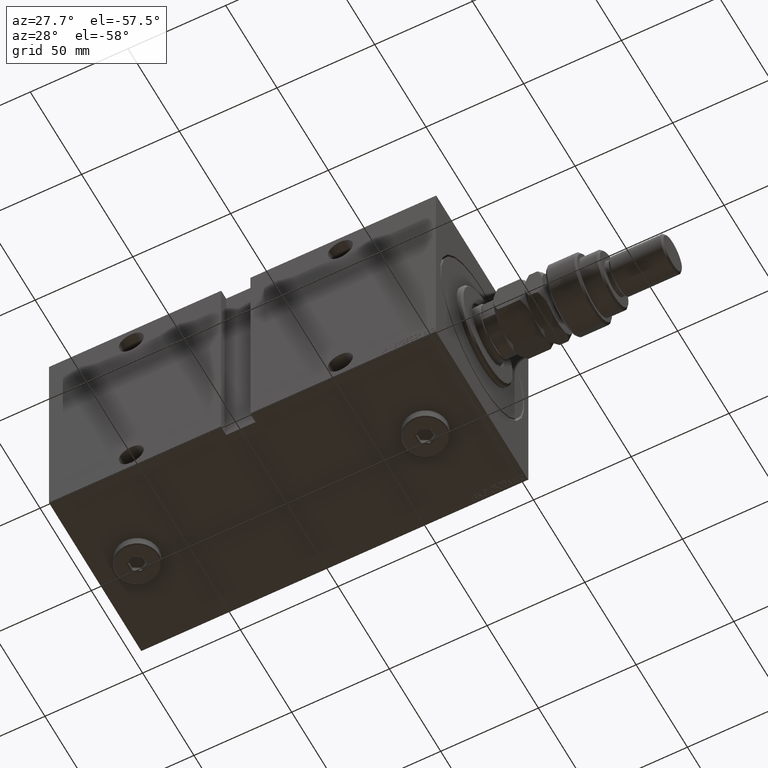
[diagram: clean part render]
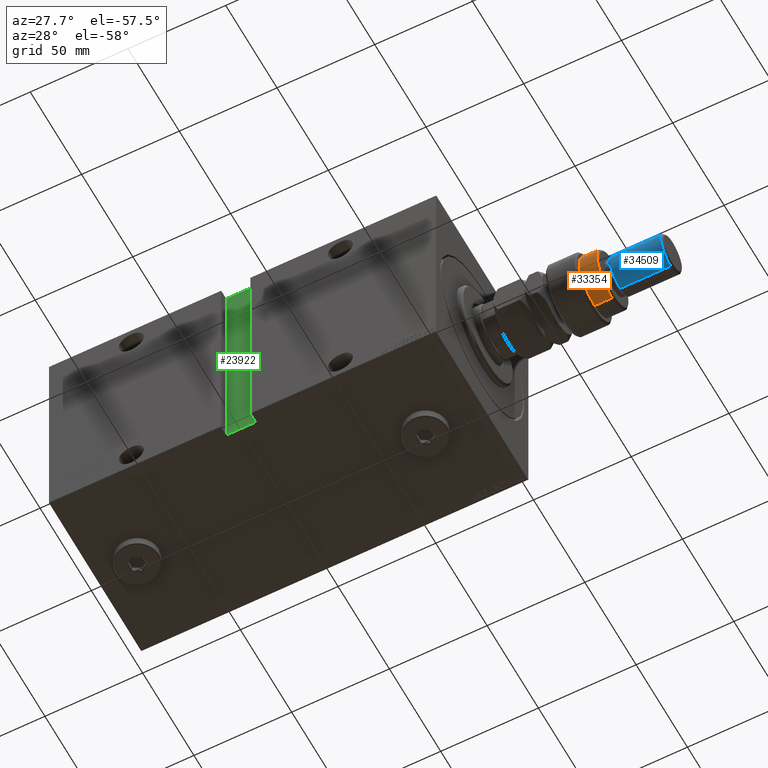
[diagram: same view with three faces highlighted in distinct colors, each labeled with its STEP entity id]
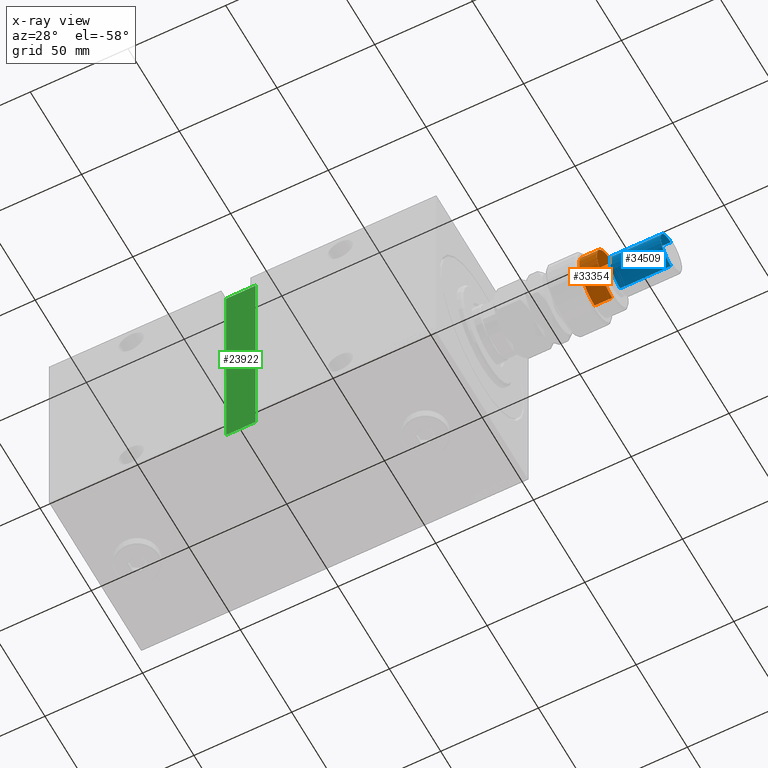
[diagram: x-ray of the same camera — body ghosted, the three highlighted faces saturated]
A machine part, auxiliary view with three faces highlighted in distinct colors.
The next image is the same camera in x-ray (body ghosted, the three faces saturated) — at least one of them is partly hidden behind the body in this view.
Their STEP definitions:

[orange] entity #33354 — the highlighted cylindrical surface (edge-blend (fillet) strip) has radius 15 mm, axis along (-1, -0, 0).
#1020 = DIRECTION ( 'NONE',  ( 0.000000000000000000, 0.000000000000000000, 1.000000000000000000 ) ) ;
#2888 = ORIENTED_EDGE ( 'NONE', *, *, #4635, .F. ) ;
#3119 = ORIENTED_EDGE ( 'NONE', *, *, #14833, .T. ) ;
#3184 = CARTESIAN_POINT ( 'NONE',  ( 15.00000000000000000, 1.836970198721029589E-15, 16.00000000000000000 ) ) ;
#4591 = ORIENTED_EDGE ( 'NONE', *, *, #11530, .F. ) ;
#4635 = EDGE_CURVE ( 'NONE', #10629, #32074, #30949, .T. ) ;
#4835 = FACE_OUTER_BOUND ( 'NONE', #34661, .T. ) ;
#5078 = DIRECTION ( 'NONE',  ( -1.000000000000000000, 0.000000000000000000, 0.000000000000000000 ) ) ;
#5118 = DIRECTION ( 'NONE',  ( -1.000000000000000000, 0.000000000000000000, 0.000000000000000000 ) ) ;
#7196 = CARTESIAN_POINT ( 'NONE',  ( 15.00000000000000000, 1.836970198721029589E-15, 24.99999999999997868 ) ) ;
#7291 = ORIENTED_EDGE ( 'NONE', *, *, #30716, .T. ) ;
#7782 = CARTESIAN_POINT ( 'NONE',  ( -15.00000000000000000, 0.000000000000000000, 17.50000000000000000 ) ) ;
#8232 = VERTEX_POINT ( 'NONE', #37148 ) ;
#8865 = DIRECTION ( 'NONE',  ( 0.000000000000000000, 0.000000000000000000, -1.000000000000000000 ) ) ;
#9097 = VECTOR ( 'NONE', #25297, 1000.000000000000000 ) ;
#9400 = CARTESIAN_POINT ( 'NONE',  ( 15.00000000000000000, 1.836970198721029589E-15, 26.00000000000000355 ) ) ;
#9602 = EDGE_CURVE ( 'NONE', #14028, #42194, #23780, .T. ) ;
#10629 = VERTEX_POINT ( 'NONE', #13901 ) ;
#11530 = EDGE_CURVE ( 'NONE', #14028, #26766, #38763, .T. ) ;
#12518 = DIRECTION ( 'NONE',  ( 0.000000000000000000, 0.000000000000000000, -1.000000000000000000 ) ) ;
#13001 = ORIENTED_EDGE ( 'NONE', *, *, #9602, .T. ) ;
#13901 = CARTESIAN_POINT ( 'NONE',  ( -12.99038105676658006, -7.500000000000000000, 17.50000000000000000 ) ) ;
#14028 = VERTEX_POINT ( 'NONE', #7196 ) ;
#14692 = VECTOR ( 'NONE', #23945, 1000.000000000000000 ) ;
#14833 = EDGE_CURVE ( 'NONE', #10629, #8232, #31351, .T. ) ;
#17937 = CIRCLE ( 'NONE', #44638, 15.00000000000000000 ) ;
#18362 = LINE ( 'NONE', #25526, #9097 ) ;
#20287 = AXIS2_PLACEMENT_3D ( 'NONE', #26124, #12518, #5118 ) ;
#22453 = CARTESIAN_POINT ( 'NONE',  ( 0.000000000000000000, 0.000000000000000000, 24.99999999999997868 ) ) ;
#23696 = CARTESIAN_POINT ( 'NONE',  ( 0.000000000000000000, 0.000000000000000000, 16.00000000000000000 ) ) ;
#23780 = CIRCLE ( 'NONE', #34460, 15.00000000000000000 ) ;
#23945 = DIRECTION ( 'NONE',  ( -0.000000000000000000, -0.000000000000000000, -1.000000000000000000 ) ) ;
#25297 = DIRECTION ( 'NONE',  ( -0.000000000000000000, -0.000000000000000000, -1.000000000000000000 ) ) ;
#25526 = CARTESIAN_POINT ( 'NONE',  ( -15.00000000000000000, 0.000000000000000000, 26.00000000000000355 ) ) ;
#26124 = CARTESIAN_POINT ( 'NONE',  ( 0.000000000000000000, 0.000000000000000000, 17.50000000000000000 ) ) ;
#26766 = VERTEX_POINT ( 'NONE', #3184 ) ;
#26797 = CARTESIAN_POINT ( 'NONE',  ( 0.000000000000000000, 0.000000000000000000, 26.00000000000000355 ) ) ;
#30373 = DIRECTION ( 'NONE',  ( 1.000000000000000000, 0.000000000000000000, 0.000000000000000000 ) ) ;
#30716 = EDGE_CURVE ( 'NONE', #8232, #26766, #17937, .T. ) ;
#30868 = CARTESIAN_POINT ( 'NONE',  ( -15.00000000000000000, 0.000000000000000000, 24.99999999999997868 ) ) ;
#30949 = CIRCLE ( 'NONE', #20287, 15.00000000000000000 ) ;
#31351 = LINE ( 'NONE', #45457, #46300 ) ;
#32074 = VERTEX_POINT ( 'NONE', #7782 ) ;
#32144 = CYLINDRICAL_SURFACE ( 'NONE', #47008, 15.00000000000000000 ) ;
#33354 = ADVANCED_FACE ( 'NONE', ( #4835 ), #32144, .T. ) ;
#34454 = DIRECTION ( 'NONE',  ( -0.000000000000000000, -0.000000000000000000, -1.000000000000000000 ) ) ;
#34460 = AXIS2_PLACEMENT_3D ( 'NONE', #22453, #8865, #37995 ) ;
#34661 = EDGE_LOOP ( 'NONE', ( #4591, #13001, #38022, #2888, #3119, #7291 ) ) ;
#37148 = CARTESIAN_POINT ( 'NONE',  ( -12.99038105676658006, -7.500000000000000000, 16.00000000000000000 ) ) ;
#37995 = DIRECTION ( 'NONE',  ( 1.000000000000000000, 0.000000000000000000, 0.000000000000000000 ) ) ;
#38022 = ORIENTED_EDGE ( 'NONE', *, *, #40174, .T. ) ;
#38763 = LINE ( 'NONE', #9400, #14692 ) ;
#40174 = EDGE_CURVE ( 'NONE', #42194, #32074, #18362, .T. ) ;
#42194 = VERTEX_POINT ( 'NONE', #30868 ) ;
#42577 = DIRECTION ( 'NONE',  ( -0.000000000000000000, -0.000000000000000000, -1.000000000000000000 ) ) ;
#44638 = AXIS2_PLACEMENT_3D ( 'NONE', #23696, #1020, #30373 ) ;
#45457 = CARTESIAN_POINT ( 'NONE',  ( -12.99038105676658006, -7.500000000000000000, 26.00000000000000355 ) ) ;
#46300 = VECTOR ( 'NONE', #42577, 1000.000000000000000 ) ;
#47008 = AXIS2_PLACEMENT_3D ( 'NONE', #26797, #34454, #5078 ) ;

[blue] entity #34509 — the highlighted cylindrical surface (edge-blend (fillet) strip) has radius 10 mm, axis along (-1, -0, 0).
#14 = VERTEX_POINT ( 'NONE', #40925 ) ;
#1405 = EDGE_CURVE ( 'NONE', #3698, #18489, #41539, .T. ) ;
#3698 = VERTEX_POINT ( 'NONE', #7215 ) ;
#4127 = DIRECTION ( 'NONE',  ( -0.000000000000000000, -0.000000000000000000, -1.000000000000000000 ) ) ;
#6176 = ORIENTED_EDGE ( 'NONE', *, *, #20791, .F. ) ;
#7215 = CARTESIAN_POINT ( 'NONE',  ( 10.00000000000000000, 1.224646799147353256E-15, 54.99999999999998579 ) ) ;
#7438 = CIRCLE ( 'NONE', #37971, 10.00000000000000000 ) ;
#10369 = FACE_OUTER_BOUND ( 'NONE', #29244, .T. ) ;
#10841 = CARTESIAN_POINT ( 'NONE',  ( 0.000000000000000000, 0.000000000000000000, 56.00000000000000711 ) ) ;
#11009 = AXIS2_PLACEMENT_3D ( 'NONE', #16959, #31053, #17193 ) ;
#11301 = CYLINDRICAL_SURFACE ( 'NONE', #45528, 10.00000000000000000 ) ;
#11871 = LINE ( 'NONE', #30952, #45758 ) ;
#15150 = DIRECTION ( 'NONE',  ( 1.000000000000000000, 0.000000000000000000, 0.000000000000000000 ) ) ;
#15585 = LINE ( 'NONE', #18929, #31164 ) ;
#16390 = ORIENTED_EDGE ( 'NONE', *, *, #1405, .T. ) ;
#16959 = CARTESIAN_POINT ( 'NONE',  ( 0.000000000000000000, 0.000000000000000000, 54.99999999999998579 ) ) ;
#17193 = DIRECTION ( 'NONE',  ( 1.000000000000000000, 0.000000000000000000, 0.000000000000000000 ) ) ;
#18489 = VERTEX_POINT ( 'NONE', #45933 ) ;
#18929 = CARTESIAN_POINT ( 'NONE',  ( 10.00000000000000000, 1.224646799147353256E-15, 56.00000000000000711 ) ) ;
#18944 = EDGE_CURVE ( 'NONE', #14, #30852, #7438, .T. ) ;
#20791 = EDGE_CURVE ( 'NONE', #3698, #30852, #15585, .T. ) ;
#23203 = CARTESIAN_POINT ( 'NONE',  ( 0.000000000000000000, 0.000000000000000000, 29.00000000000000711 ) ) ;
#23366 = ORIENTED_EDGE ( 'NONE', *, *, #18944, .T. ) ;
#24788 = EDGE_CURVE ( 'NONE', #18489, #14, #11871, .T. ) ;
#25171 = DIRECTION ( 'NONE',  ( -1.000000000000000000, 0.000000000000000000, 0.000000000000000000 ) ) ;
#25625 = DIRECTION ( 'NONE',  ( -0.000000000000000000, -0.000000000000000000, -1.000000000000000000 ) ) ;
#25896 = DIRECTION ( 'NONE',  ( -0.000000000000000000, -0.000000000000000000, 1.000000000000000000 ) ) ;
#29244 = EDGE_LOOP ( 'NONE', ( #6176, #16390, #35392, #23366 ) ) ;
#29998 = DIRECTION ( 'NONE',  ( -0.000000000000000000, -0.000000000000000000, -1.000000000000000000 ) ) ;
#30852 = VERTEX_POINT ( 'NONE', #37323 ) ;
#30952 = CARTESIAN_POINT ( 'NONE',  ( -10.00000000000000000, 0.000000000000000000, 56.00000000000000711 ) ) ;
#31053 = DIRECTION ( 'NONE',  ( 0.000000000000000000, 0.000000000000000000, -1.000000000000000000 ) ) ;
#31164 = VECTOR ( 'NONE', #4127, 1000.000000000000000 ) ;
#34509 = ADVANCED_FACE ( 'NONE', ( #10369 ), #11301, .T. ) ;
#35392 = ORIENTED_EDGE ( 'NONE', *, *, #24788, .T. ) ;
#37323 = CARTESIAN_POINT ( 'NONE',  ( 10.00000000000000000, 1.224646799147353256E-15, 29.00000000000000711 ) ) ;
#37971 = AXIS2_PLACEMENT_3D ( 'NONE', #23203, #25896, #15150 ) ;
#40925 = CARTESIAN_POINT ( 'NONE',  ( -10.00000000000000000, 0.000000000000000000, 29.00000000000000711 ) ) ;
#41539 = CIRCLE ( 'NONE', #11009, 10.00000000000000000 ) ;
#45528 = AXIS2_PLACEMENT_3D ( 'NONE', #10841, #25625, #25171 ) ;
#45758 = VECTOR ( 'NONE', #29998, 1000.000000000000000 ) ;
#45933 = CARTESIAN_POINT ( 'NONE',  ( -10.00000000000000000, 0.000000000000000000, 54.99999999999998579 ) ) ;

[green] entity #23922 — the highlighted planar face has unit normal (-0, 1, -0).
#2077 = VERTEX_POINT ( 'NONE', #13751 ) ;
#2503 = FACE_OUTER_BOUND ( 'NONE', #23078, .T. ) ;
#3081 = CARTESIAN_POINT ( 'NONE',  ( 109.9999999999999858, 40.00000000000003553, -57.50000000000000711 ) ) ;
#3142 = CARTESIAN_POINT ( 'NONE',  ( 94.99999999999997158, 40.00000000000002132, -57.50000000000001421 ) ) ;
#7513 = ORIENTED_EDGE ( 'NONE', *, *, #9121, .T. ) ;
#8418 = EDGE_CURVE ( 'NONE', #22415, #43007, #31613, .T. ) ;
#9121 = EDGE_CURVE ( 'NONE', #34366, #22415, #38353, .T. ) ;
#9445 = CARTESIAN_POINT ( 'NONE',  ( -2.512082536157262191E-30, 40.00000000000001421, 4.799630170686818023E-15 ) ) ;
#12545 = DIRECTION ( 'NONE',  ( -1.206764157201257045E-16, 1.206764157201257045E-16, -1.000000000000000000 ) ) ;
#13483 = DIRECTION ( 'NONE',  ( -1.000000000000000000, 0.000000000000000000, 0.000000000000000000 ) ) ;
#13751 = CARTESIAN_POINT ( 'NONE',  ( 94.99999999999997158, 40.00000000000000711, 57.50000000000001421 ) ) ;
#14057 = VECTOR ( 'NONE', #20333, 1000.000000000000000 ) ;
#14908 = ORIENTED_EDGE ( 'NONE', *, *, #27701, .T. ) ;
#16139 = ORIENTED_EDGE ( 'NONE', *, *, #33542, .T. ) ;
#16984 = CARTESIAN_POINT ( 'NONE',  ( 109.9999999999999858, 40.00000000000000711, 57.50000000000002132 ) ) ;
#19953 = CARTESIAN_POINT ( 'NONE',  ( 109.9999999999999858, 40.00000000000000711, 57.50000000000002132 ) ) ;
#20333 = DIRECTION ( 'NONE',  ( 1.000000000000000000, -0.000000000000000000, 4.625929269271481969E-16 ) ) ;
#20441 = VECTOR ( 'NONE', #13483, 1000.000000000000000 ) ;
#21765 = CARTESIAN_POINT ( 'NONE',  ( 94.99999999999997158, 40.00000000000002132, -57.50000000000001421 ) ) ;
#22415 = VERTEX_POINT ( 'NONE', #3081 ) ;
#23078 = EDGE_LOOP ( 'NONE', ( #16139, #14908, #7513, #36904 ) ) ;
#23922 = ADVANCED_FACE ( 'NONE', ( #2503 ), #31863, .F. ) ;
#25869 = AXIS2_PLACEMENT_3D ( 'NONE', #9445, #38813, #35928 ) ;
#26867 = CARTESIAN_POINT ( 'NONE',  ( 109.9999999999999716, 40.00000000000002132, -57.50000000000001421 ) ) ;
#27701 = EDGE_CURVE ( 'NONE', #2077, #34366, #45888, .T. ) ;
#30620 = VECTOR ( 'NONE', #12545, 1000.000000000000000 ) ;
#31613 = LINE ( 'NONE', #46185, #20441 ) ;
#31863 = PLANE ( 'NONE',  #25869 ) ;
#32027 = DIRECTION ( 'NONE',  ( 0.000000000000000000, -1.206764157201257045E-16, 1.000000000000000000 ) ) ;
#33542 = EDGE_CURVE ( 'NONE', #43007, #2077, #39210, .T. ) ;
#34366 = VERTEX_POINT ( 'NONE', #19953 ) ;
#35928 = DIRECTION ( 'NONE',  ( 0.000000000000000000, 1.206764157201257045E-16, -1.000000000000000000 ) ) ;
#36904 = ORIENTED_EDGE ( 'NONE', *, *, #8418, .T. ) ;
#38353 = LINE ( 'NONE', #26867, #30620 ) ;
#38813 = DIRECTION ( 'NONE',  ( 5.582405635905026143E-32, -1.000000000000000000, -1.206764157201257045E-16 ) ) ;
#39210 = LINE ( 'NONE', #3142, #39401 ) ;
#39401 = VECTOR ( 'NONE', #32027, 1000.000000000000000 ) ;
#43007 = VERTEX_POINT ( 'NONE', #21765 ) ;
#45888 = LINE ( 'NONE', #16984, #14057 ) ;
#46185 = CARTESIAN_POINT ( 'NONE',  ( 109.9999999999999716, 40.00000000000002132, -57.50000000000001421 ) ) ;